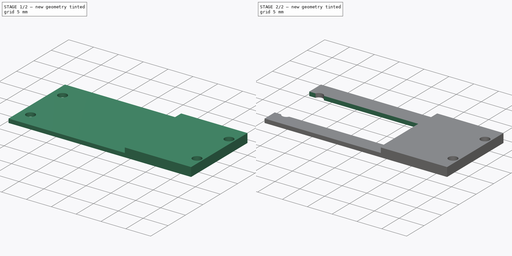
[diagram: build sequence overview — one tinted view per stage of 2, left to right]
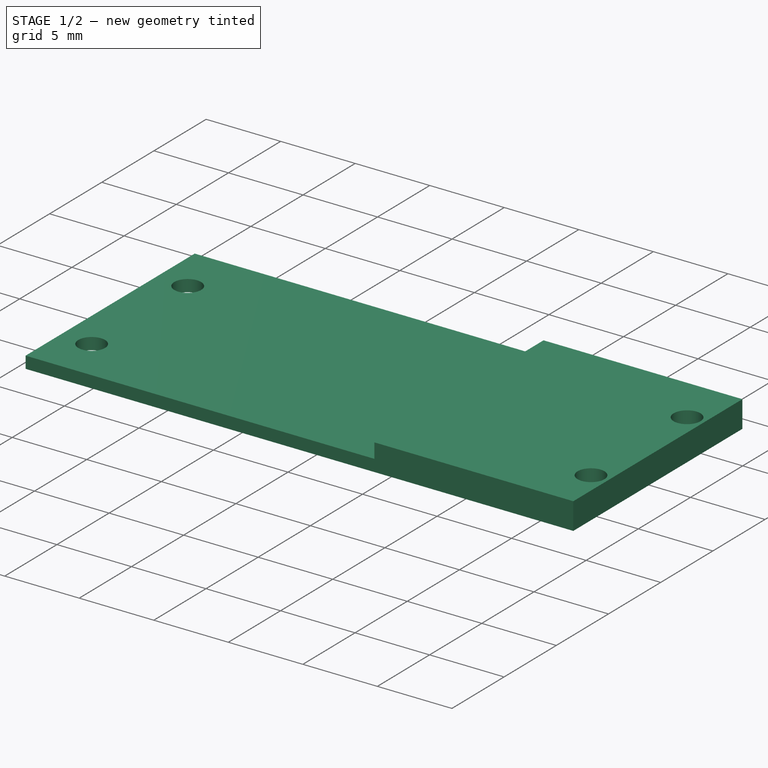
[diagram: stage 1 of 2 — iso view after this stage's code; geometry added in this stage tinted green]
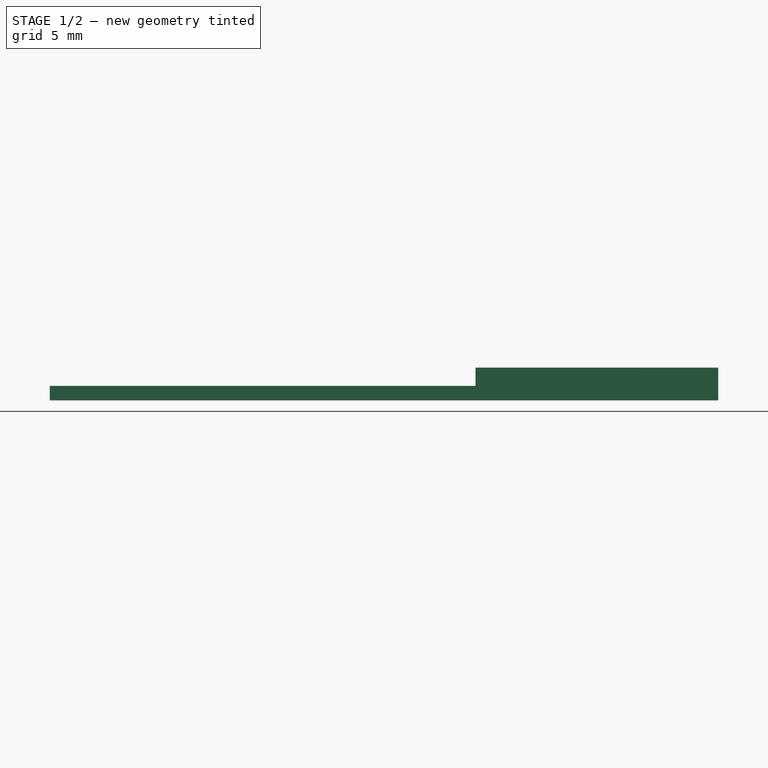
[diagram: stage 1 of 2 — front view after this stage's code; geometry added in this stage tinted green]
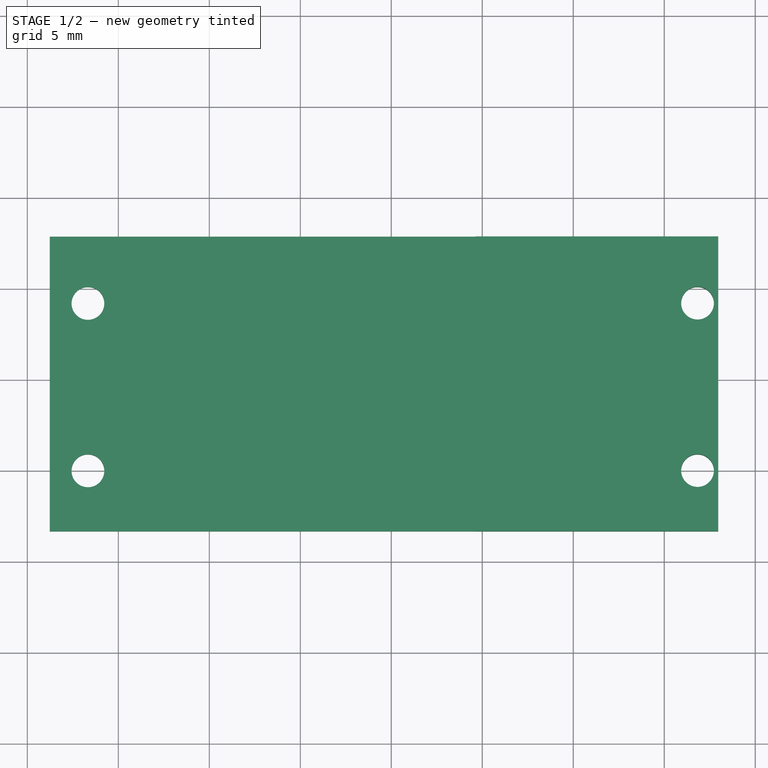
[diagram: stage 1 of 2 — top view after this stage's code; geometry added in this stage tinted green]
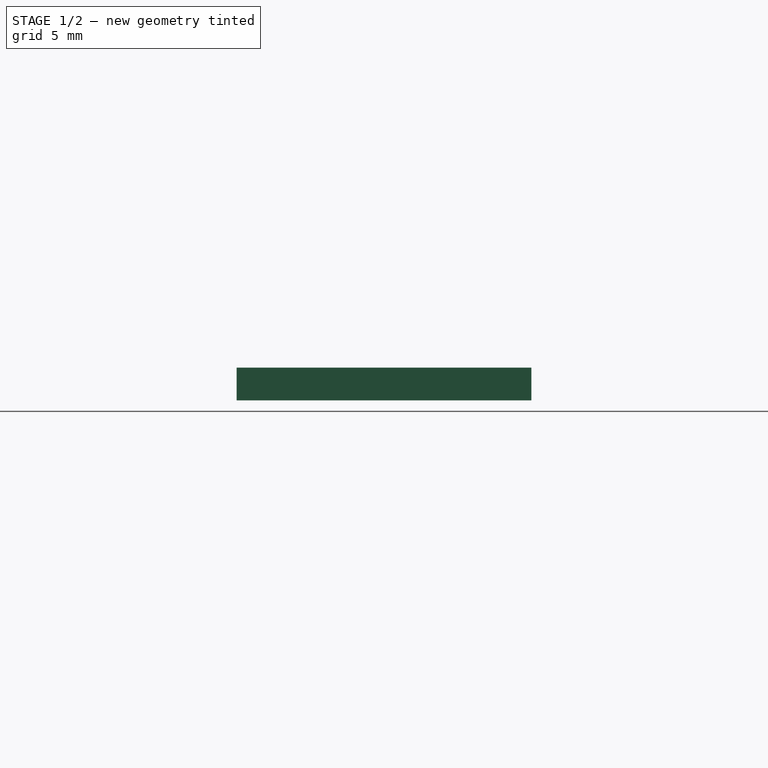
[diagram: stage 1 of 2 — right view after this stage's code; geometry added in this stage tinted green]
FCSTD DOCUMENT  (FreeCAD 1.1R20260325 (Git shallow))
Label: FinalZeroHolder
License: All rights reserved
LicenseURL: https://en.wikipedia.org/wiki/All_rights_reserved
objects: Sketcher::SketchObject×3, App::Point×2, PartDesign::Pad×2, PartDesign::Pocket×1, PartDesign::Body×1, App::Part×1
note: 16 computed .brp shape members not serialized (recipe doc carries the construction recipe); baked Part::Feature solids carry a one-line shape summary decoded from their .brp

FEATURE [Sketcher::SketchObject] Sketch
  ArcFitTolerance = 1e-06
  AttachmentSupport = -> [XY_Plane001]
  ExternalTypes = [0]
  FullyConstrained = true
  MakeInternals = false
  MapMode = 5
  _ExternalGeoVersion = 0
  sketch-geometry (8):
    g0: Circle CenterX=1.83 CenterY=39.2 CenterZ=0 NormalX=0 NormalY=0 NormalZ=1 AngleXU=0 Radius=0.9
    g1: Circle CenterX=1.83 CenterY=30 CenterZ=0 NormalX=0 NormalY=0 NormalZ=1 AngleXU=0 Radius=0.9
    g2: Circle CenterX=-31.67 CenterY=39.2 CenterZ=0 NormalX=0 NormalY=0 NormalZ=1 AngleXU=0 Radius=0.9
    g3: Circle CenterX=-31.67 CenterY=30 CenterZ=0 NormalX=0 NormalY=0 NormalZ=1 AngleXU=0 Radius=0.9
    g4: LineSegment StartX=-33.77 StartY=42.87 StartZ=0 EndX=-33.77 EndY=26.67 EndZ=0
    g5: LineSegment StartX=-33.77 StartY=26.67 StartZ=0 EndX=2.97 EndY=26.67 EndZ=0
    g6: LineSegment StartX=2.97 StartY=26.67 StartZ=0 EndX=2.97 EndY=42.87 EndZ=0
    g7: LineSegment StartX=2.97 StartY=42.87 StartZ=0 EndX=-33.77 EndY=42.87 EndZ=0
  constraints (24):
    c: DistanceX(g0,g1) = 0
    c: Equal(g0,g1)
    c: Diameter(g0) = 1.8
    c: DistanceX(g-1,g1) = 1.83
    c: DistanceY(g-1,g1) = 30
    c: DistanceY(g-1,g0) = 39.2
    c: DistanceX(g2,g3) = 0
    c: Equal(g2,g3)
    c: Diameter(g2) = 1.8
    c: DistanceY(g0,g2) = 0
    c: DistanceY(g3,g1) = 0
    c: DistanceX(g3,g1) = 33.5
    c: Coincident(g4,g5)
    c: Coincident(g5,g6)
    c: Coincident(g6,g7)
    c: Coincident(g7,g4)
    c: Vertical(g4)
    c: Vertical(g6)
    c: Horizontal(g5)
    c: Horizontal(g7)
    c: DistanceY(g4,g4) = 16.2
    c: DistanceX(g7,g7) = 36.74
    c: DistanceX(g1,g5) = 1.14
    c: DistanceY(g-1,g5) = 26.67
FEATURE [App::Point] Origin002  label="Origin"
  Role = Origin
FEATURE [App::Point] Origin003  label="Origin"
  Role = Origin
FEATURE [PartDesign::Pad] Pad  label="MainPad"
  Direction = (0,0,1)
  Length = 0.8
  Length2 = 10
  Profile = -> Sketch
  ReferenceAxis = -> Sketch [N_Axis]
  Refine = true
  SideType = 0
  Suppressed = false
  Type = 0
  Type2 = 0
FEATURE [Sketcher::SketchObject] Sketch001
  ArcFitTolerance = 1e-06
  AttachmentSupport = -> [Pad]
  ExternalTypes = [0]
  FullyConstrained = true
  MakeInternals = false
  MapMode = 5
  Placement = pos=(0,0,0.8) rot=(0,0,1;0rad)
  _ExternalGeoVersion = 1
  sketch-geometry (6):
    g0: Circle CenterX=1.83 CenterY=39.2 CenterZ=0 NormalX=0 NormalY=0 NormalZ=1 AngleXU=0 Radius=0.9
    g1: Circle CenterX=1.83 CenterY=30 CenterZ=0 NormalX=0 NormalY=0 NormalZ=1 AngleXU=0 Radius=0.9
    g2: LineSegment StartX=-10.37 StartY=42.87 StartZ=0 EndX=-10.37 EndY=26.67 EndZ=0
    g3: LineSegment StartX=-10.37 StartY=26.67 StartZ=0 EndX=2.97 EndY=26.67 EndZ=0
    g4: LineSegment StartX=2.97 StartY=26.67 StartZ=0 EndX=2.97 EndY=42.87 EndZ=0
    g5: LineSegment StartX=2.97 StartY=42.87 StartZ=0 EndX=-10.37 EndY=42.87 EndZ=0
  constraints (18):
    c: DistanceX(g0,g1) = 0
    c: Equal(g0,g1)
    c: Diameter(g0) = 1.8
    c: DistanceX(g-1,g1) = 1.83
    c: DistanceY(g-1,g1) = 30
    c: DistanceY(g-1,g0) = 39.2
    c: Coincident(g2,g3)
    c: Coincident(g3,g4)
    c: Coincident(g4,g5)
    c: Coincident(g5,g2)
    c: Vertical(g2)
    c: Vertical(g4)
    c: Horizontal(g3)
    c: Horizontal(g5)
    c: DistanceY(g2,g2) = 16.2
    c: DistanceX(g5,g5) = 13.34
    c: DistanceX(g1,g3) = 1.14
    c: DistanceY(g-1,g3) = 26.67
FEATURE [PartDesign::Pad] Pad001  label="BackPad"
  BaseFeature = -> Pad
  Direction = (0,0,1)
  Length = 1
  Length2 = 10
  Profile = -> Sketch001
  ReferenceAxis = -> Sketch001 [N_Axis]
  Refine = true
  SideType = 0
  Suppressed = false
  Type = 0
  Type2 = 0
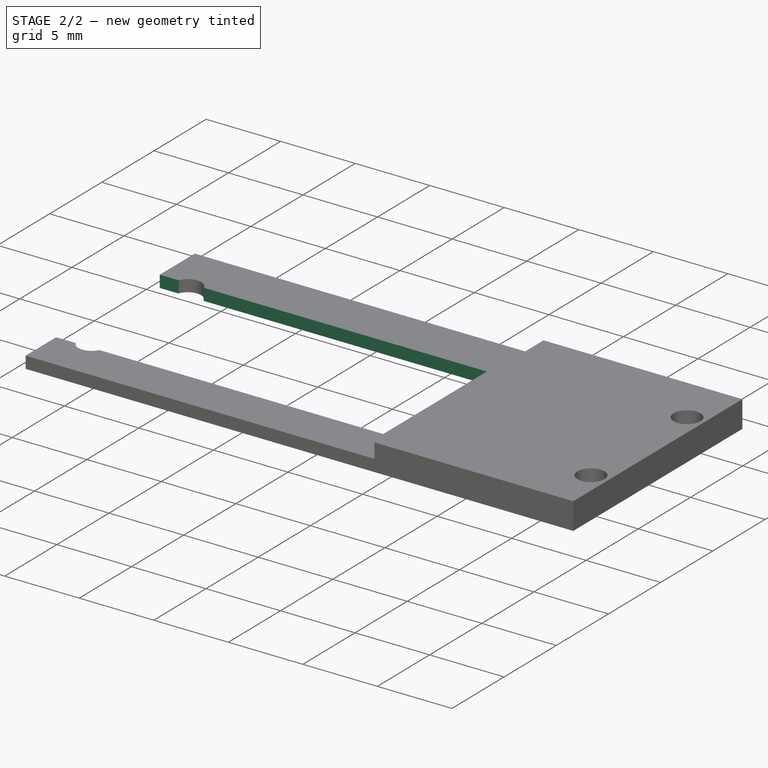
[diagram: stage 2 of 2 — iso view after this stage's code; geometry added in this stage tinted green]
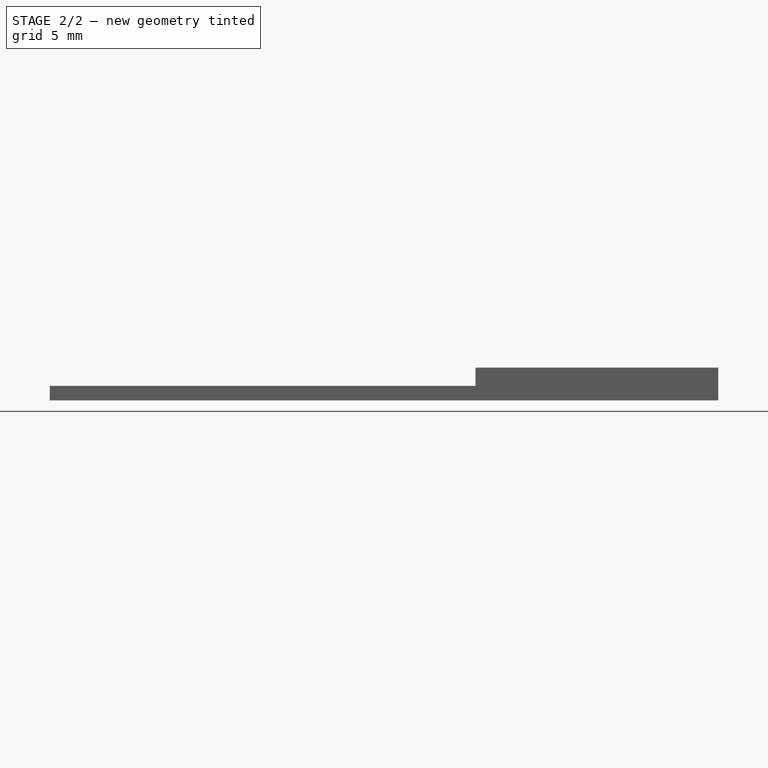
[diagram: stage 2 of 2 — front view after this stage's code; geometry added in this stage tinted green]
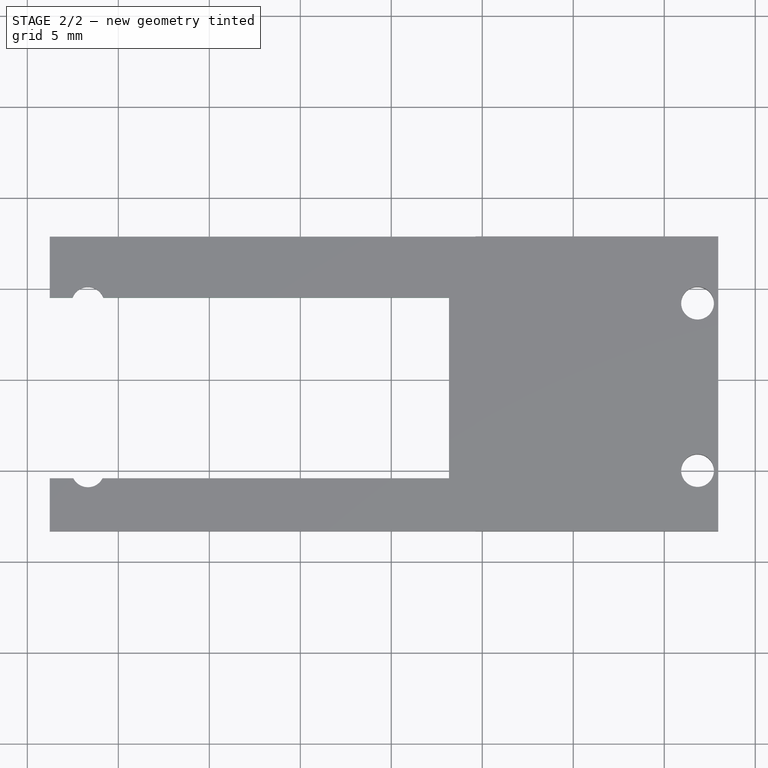
[diagram: stage 2 of 2 — top view after this stage's code; geometry added in this stage tinted green]
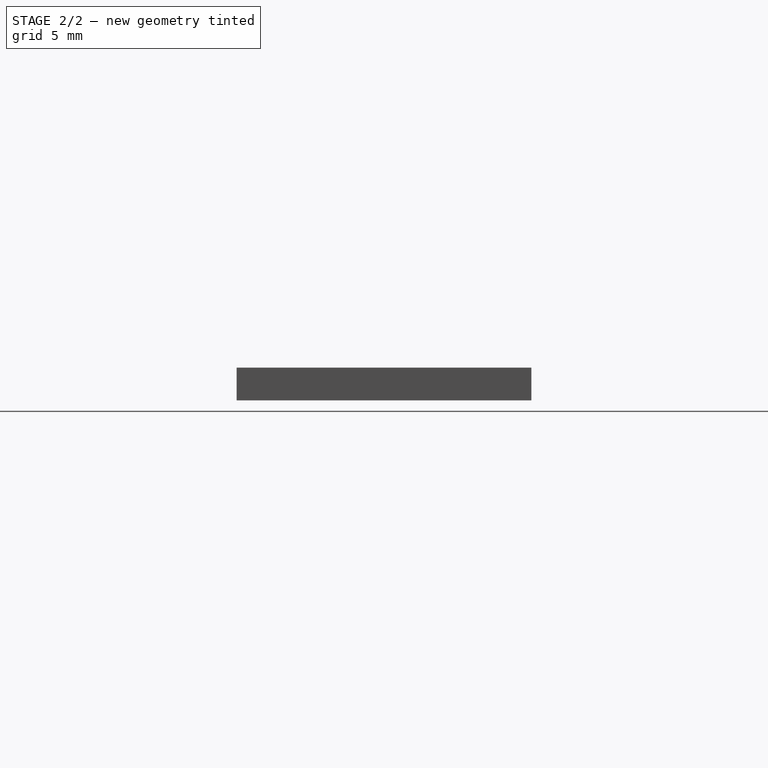
[diagram: stage 2 of 2 — right view after this stage's code; geometry added in this stage tinted green]
FEATURE [Sketcher::SketchObject] Sketch002
  ArcFitTolerance = 1e-06
  AttachmentSupport = -> [Pad001]
  ExternalTypes = [0]
  FullyConstrained = false
  MakeInternals = false
  MapMode = 5
  Placement = pos=(0,0,0.8) rot=(0,0,1;0rad)
  _ExternalGeoVersion = 1
  sketch-geometry (4):
    g0: LineSegment StartX=-34.8152 StartY=39.5171 StartZ=0 EndX=-34.8152 EndY=29.5907 EndZ=0
    g1: LineSegment StartX=-34.8152 StartY=29.5907 StartZ=0 EndX=-11.8277 EndY=29.5907 EndZ=0
    g2: LineSegment StartX=-11.8277 StartY=29.5907 StartZ=0 EndX=-11.8277 EndY=39.5171 EndZ=0
    g3: LineSegment StartX=-11.8277 StartY=39.5171 StartZ=0 EndX=-34.8152 EndY=39.5171 EndZ=0
  constraints (8):
    c: Coincident(g0,g1)
    c: Coincident(g1,g2)
    c: Coincident(g2,g3)
    c: Coincident(g3,g0)
    c: Vertical(g0)
    c: Vertical(g2)
    c: Horizontal(g1)
    c: Horizontal(g3)
FEATURE [PartDesign::Pocket] Pocket
  BaseFeature = -> Pad001
  Direction = (0,0,-1)
  Length = 5
  Length2 = 5
  Profile = -> Sketch002
  ReferenceAxis = -> Sketch002 [N_Axis]
  Refine = true
  SideType = 0
  Suppressed = false
  Type = 1
  Type2 = 0
FEATURE [PartDesign::Body] Body  label="FinalZeroHolderBody"
  AllowCompound = false
  Group = -> [Sketch,Pad,Sketch001,Pad001,Sketch002,Pocket]
  Origin = -> Origin001
  Tip = -> Pocket
FEATURE [App::Part] Part
  Group = -> [Body]
  Origin = -> Origin
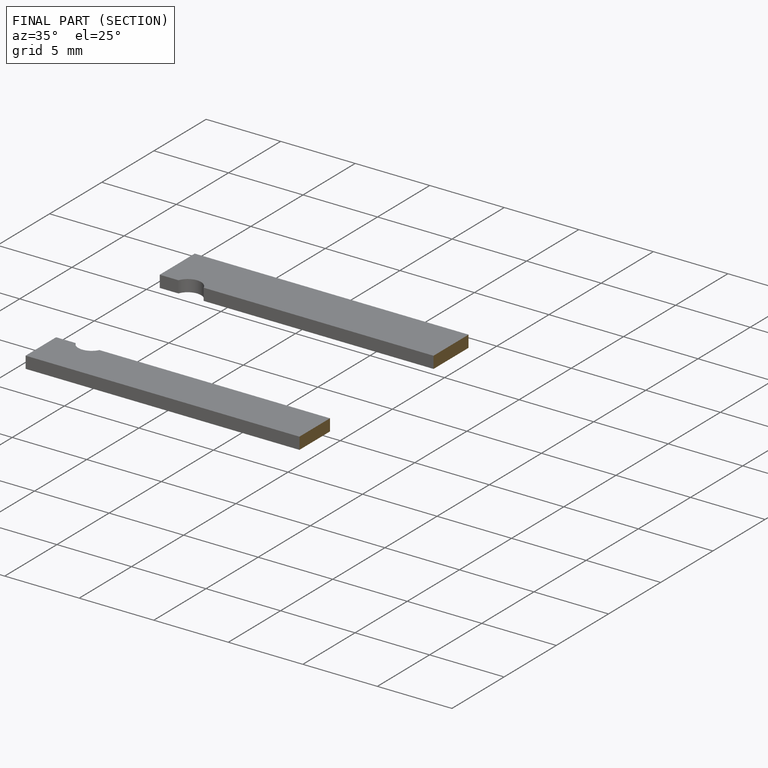
[diagram: finished part — half-section view (interior)]
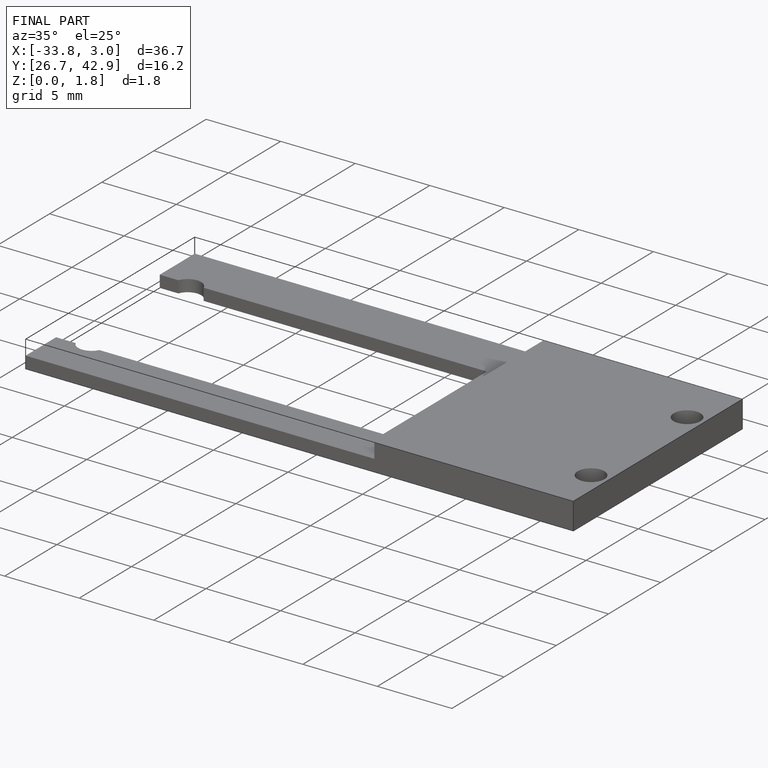
[diagram: finished part — iso view with bounding-box wireframe]
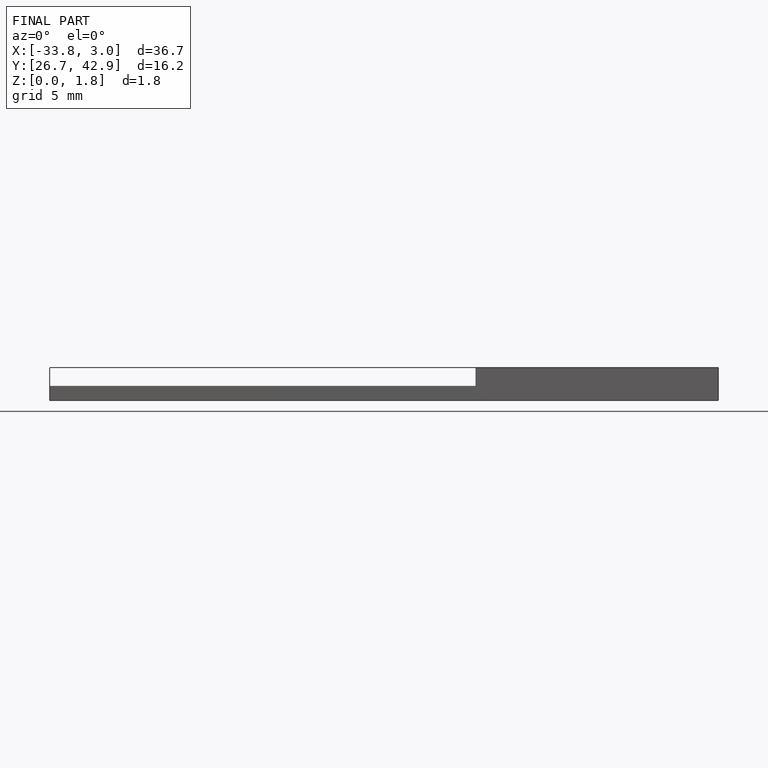
[diagram: finished part — front view with bounding-box wireframe]
